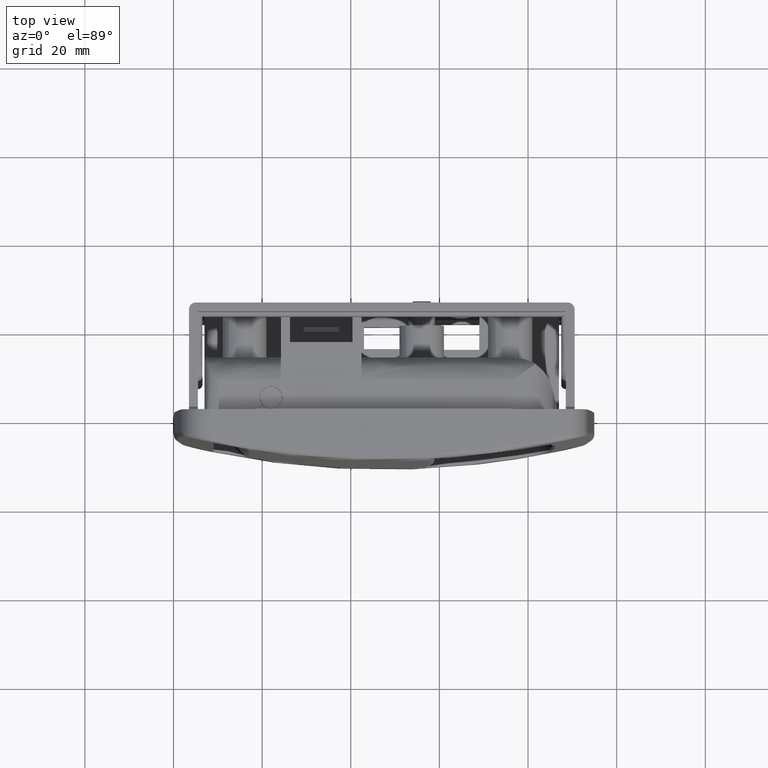
[diagram: clean part render]
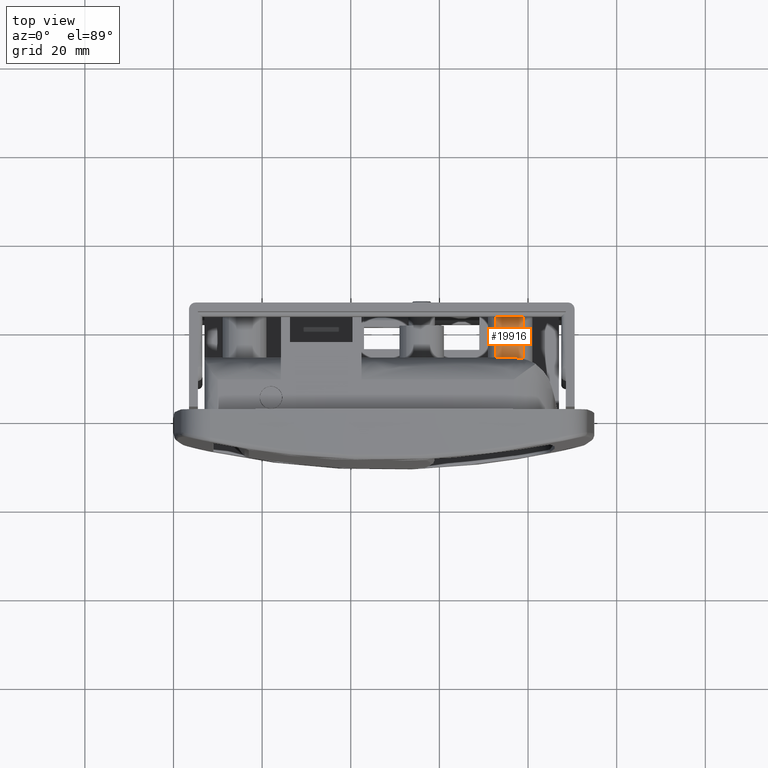
[diagram: same view with one face highlighted and labeled with its STEP entity id]
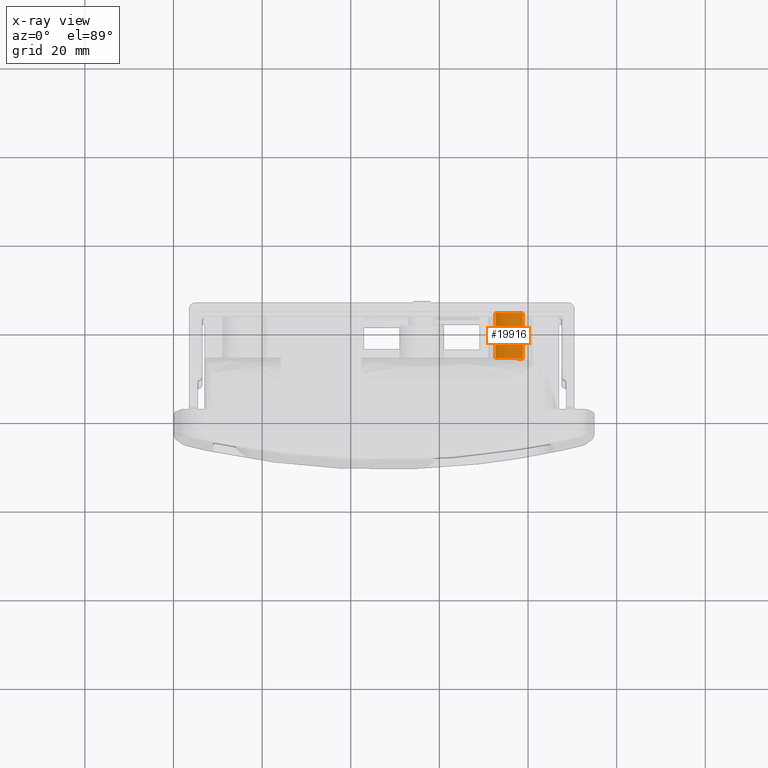
[diagram: x-ray of the same camera — body ghosted, the highlighted face saturated]
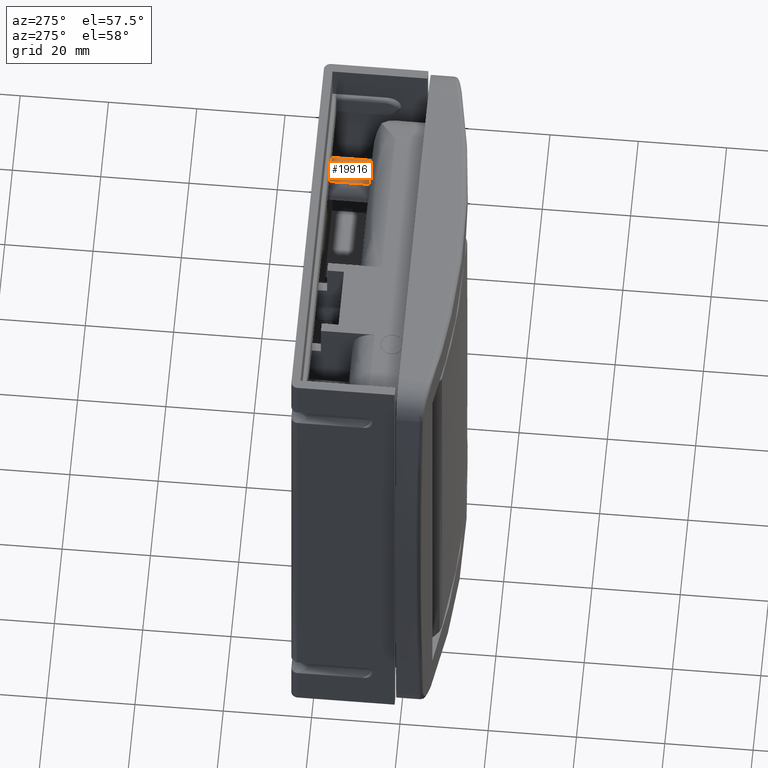
[diagram: same view with one face highlighted and labeled with its STEP entity id]
A machine part, top view. The second image highlights one B-rep face of the part: STEP entity #19916.
The next image is the same camera in x-ray: the body ghosted, the highlighted face saturated — about 0% of this face is hidden behind the body in this view.
A second angle (auxiliary view) of the same face is appended — the face is thin or edge-on in the first view.
In plain terms, the highlighted face is a freeform B-spline surface patch.
Its self-contained STEP definition (entity closure, byte-faithful):
#19691=CARTESIAN_POINT('',(78.838956304722956,22.999999999957691,44.115819352839253));
#19692=VERTEX_POINT('',#19691);
#19703=CARTESIAN_POINT('',(78.838955672959059,12.533316193399440,44.115817763702012));
#19704=VERTEX_POINT('',#19703);
#19705=CARTESIAN_POINT('',(78.838955672959059,12.533316193399440,44.115817763702012));
#19706=CARTESIAN_POINT('',(78.838956304722956,22.999999999957691,44.115819352839253));
#19707=QUASI_UNIFORM_CURVE('',1,(#19705,#19706),.UNSPECIFIED.,.F.,.U.);
#19708=EDGE_CURVE('',#19704,#19692,#19707,.T.);
#19790=CARTESIAN_POINT('',(72.663109891043149,12.800000000021599,43.723551256520032));
#19791=VERTEX_POINT('',#19790);
#19801=CARTESIAN_POINT('',(72.663110192346352,22.999999999967851,43.723550513488178));
#19802=VERTEX_POINT('',#19801);
#19803=CARTESIAN_POINT('',(72.663109891043149,12.800000000021599,43.723551256520032));
#19804=CARTESIAN_POINT('',(72.663110192346352,22.999999999967851,43.723550513488178));
#19805=QUASI_UNIFORM_CURVE('',1,(#19803,#19804),.UNSPECIFIED.,.F.,.U.);
#19806=EDGE_CURVE('',#19791,#19802,#19805,.T.);
#19850=CARTESIAN_POINT('',(72.663109804480371,12.010505809253170,43.723551178947012));
#19851=CARTESIAN_POINT('',(75.596520521788690,12.010505809253170,46.352319349518957));
#19852=CARTESIAN_POINT('',(78.838955744049002,12.010505809253173,44.115818877693144));
#19853=CARTESIAN_POINT('',(72.663109804480371,23.289900496652130,43.723551178947012));
#19854=CARTESIAN_POINT('',(75.596520521788690,23.289900496652137,46.352319349518957));
#19855=CARTESIAN_POINT('',(78.838955744048988,23.289900496652127,44.115818877693130));
#19863=(BOUNDED_SURFACE()B_SPLINE_SURFACE(2,1,((#19850,#19853),(#19851,#19854),(#19852,#19855)),.UNSPECIFIED.,.F.,.F.,.U.)B_SPLINE_SURFACE_WITH_KNOTS((3,3),(2,2),(0.0,6.928356343074515),(0.0,11.279394687398970),.UNSPECIFIED.)GEOMETRIC_REPRESENTATION_ITEM()RATIONAL_B_SPLINE_SURFACE(((1.0,1.0),(0.753969707132648,0.753969707132648),(0.921270287910055,0.921270287910055)))REPRESENTATION_ITEM('')SURFACE());
#19864=CARTESIAN_POINT('',(76.000000000186603,22.999999999967851,44.999955628702637));
#19865=VERTEX_POINT('',#19864);
#19866=CARTESIAN_POINT('',(78.838956304722956,22.999999999957691,44.115819352839253));
#19867=CARTESIAN_POINT('',(78.347323330520922,22.999999999959471,44.455593211670980));
#19868=CARTESIAN_POINT('',(77.415186068113414,22.999999999962760,44.875845078258571));
#19869=CARTESIAN_POINT('',(76.408843285232166,22.999999999966430,45.000051254976462));
#19870=CARTESIAN_POINT('',(76.000000000186603,22.999999999967851,44.999955628702637));
#19871=B_SPLINE_CURVE_WITH_KNOTS('',3,(#19866,#19867,#19868,#19869,#19870),.UNSPECIFIED.,.F.,.U.,(4,1,4),(0.000000023706677,1.792604482975318,3.019145315656286),.UNSPECIFIED.);
#19872=EDGE_CURVE('',#19692,#19865,#19871,.T.);
#19873=ORIENTED_EDGE('',*,*,#19872,.T.);
#19874=CARTESIAN_POINT('',(76.000000000186603,22.999999999967851,44.999955628702637));
#19875=CARTESIAN_POINT('',(75.543301475560625,22.999999999967830,45.000131630966798));
#19876=CARTESIAN_POINT('',(74.782280727398671,22.999999999967930,44.894895827957207));
#19877=CARTESIAN_POINT('',(73.640077706796873,22.999999999967709,44.458007750499469));
#19878=CARTESIAN_POINT('',(73.003107105368770,22.999999999968001,44.028464736630859));
#19879=CARTESIAN_POINT('',(72.663110192346352,22.999999999967851,43.723550513488178));
#19880=B_SPLINE_CURVE_WITH_KNOTS('',3,(#19874,#19875,#19876,#19877,#19878,#19879),.UNSPECIFIED.,.F.,.U.,(4,1,1,4),(0.000000039801023,1.370037547148194,2.283394565385475,3.653432072686320),.UNSPECIFIED.);
#19881=EDGE_CURVE('',#19865,#19802,#19880,.T.);
#19882=ORIENTED_EDGE('',*,*,#19881,.T.);
#19883=ORIENTED_EDGE('',*,*,#19806,.F.);
#19884=CARTESIAN_POINT('',(76.664307444980608,12.800000000064101,44.955628702947052));
#19885=VERTEX_POINT('',#19884);
#19886=CARTESIAN_POINT('',(72.663109891043149,12.800000000021599,43.723551256520032));
#19887=CARTESIAN_POINT('',(72.964640901291162,12.800000000025021,43.993902423061407));
#19888=CARTESIAN_POINT('',(73.540955581390179,12.800000000031361,44.395796975320543));
#19889=CARTESIAN_POINT('',(74.414678043939290,12.800000000040839,44.765117917051619));
#19890=CARTESIAN_POINT('',(75.423218158752320,12.800000000051330,45.009839693927439));
#19891=CARTESIAN_POINT('',(76.173727696730253,12.800000000059290,45.021599215825319));
#19892=CARTESIAN_POINT('',(76.664307444980608,12.800000000064101,44.955628702947052));
#19893=B_SPLINE_CURVE_WITH_KNOTS('',3,(#19886,#19887,#19888,#19889,#19890,#19891,#19892),.UNSPECIFIED.,.F.,.U.,(4,1,1,1,4),(0.000000063918265,1.214925456266058,2.092397061158506,2.834815167087908,4.319722578127548),.UNSPECIFIED.);
#19894=EDGE_CURVE('',#19791,#19885,#19893,.T.);
#19895=ORIENTED_EDGE('',*,*,#19894,.T.);
#19896=CARTESIAN_POINT('',(76.664307444980608,12.800000000064101,44.955628702947052));
#19897=CARTESIAN_POINT('',(76.814166135325422,12.799999721544831,44.935540241274637));
#19898=CARTESIAN_POINT('',(76.962945708030958,12.796258833217861,44.908691050513589));
#19899=CARTESIAN_POINT('',(77.184489767705642,12.785257898913221,44.858219029400843));
#19900=CARTESIAN_POINT('',(77.258066498678673,12.780692217370509,44.839692712751727));
#19901=CARTESIAN_POINT('',(77.404671260737729,12.769795914093750,44.799193665927341));
#19902=CARTESIAN_POINT('',(77.477874968703091,12.763447252468080,44.777162378463743));
#19903=CARTESIAN_POINT('',(77.840350497371176,12.727586077300179,44.658941500598630));
#19904=CARTESIAN_POINT('',(78.116133434151010,12.686158014284899,44.539916604932387));
#19905=CARTESIAN_POINT('',(78.510304579495468,12.609661842149089,44.326697394999542));
#19906=CARTESIAN_POINT('',(78.638421426818141,12.581758973052290,44.249801343314338));
#19907=CARTESIAN_POINT('',(78.788641439831935,12.545730835264729,44.150186219968440));
#19908=CARTESIAN_POINT('',(78.813878952734981,12.539560673997499,44.133115155662260));
#19909=CARTESIAN_POINT('',(78.838955672959059,12.533316193399440,44.115817763702012));
#19910=B_SPLINE_CURVE_WITH_KNOTS('',3,(#19896,#19897,#19898,#19899,#19900,#19901,#19902,#19903,#19904,#19905,#19906,#19907,#19908,#19909),.UNSPECIFIED.,.F.,.U.,(4,2,2,2,2,2,4),(0.0,0.031250000000005,0.046875000000006,0.062500000000006,0.125000000000009,0.156250000000011,0.162595723328677),.UNSPECIFIED.);
#19911=EDGE_CURVE('',#19885,#19704,#19910,.T.);
#19912=ORIENTED_EDGE('',*,*,#19911,.T.);
#19913=ORIENTED_EDGE('',*,*,#19708,.T.);
#19914=EDGE_LOOP('',(#19873,#19882,#19883,#19895,#19912,#19913));
#19915=FACE_OUTER_BOUND('',#19914,.T.);
#19916=ADVANCED_FACE('',(#19915),#19863,.T.);